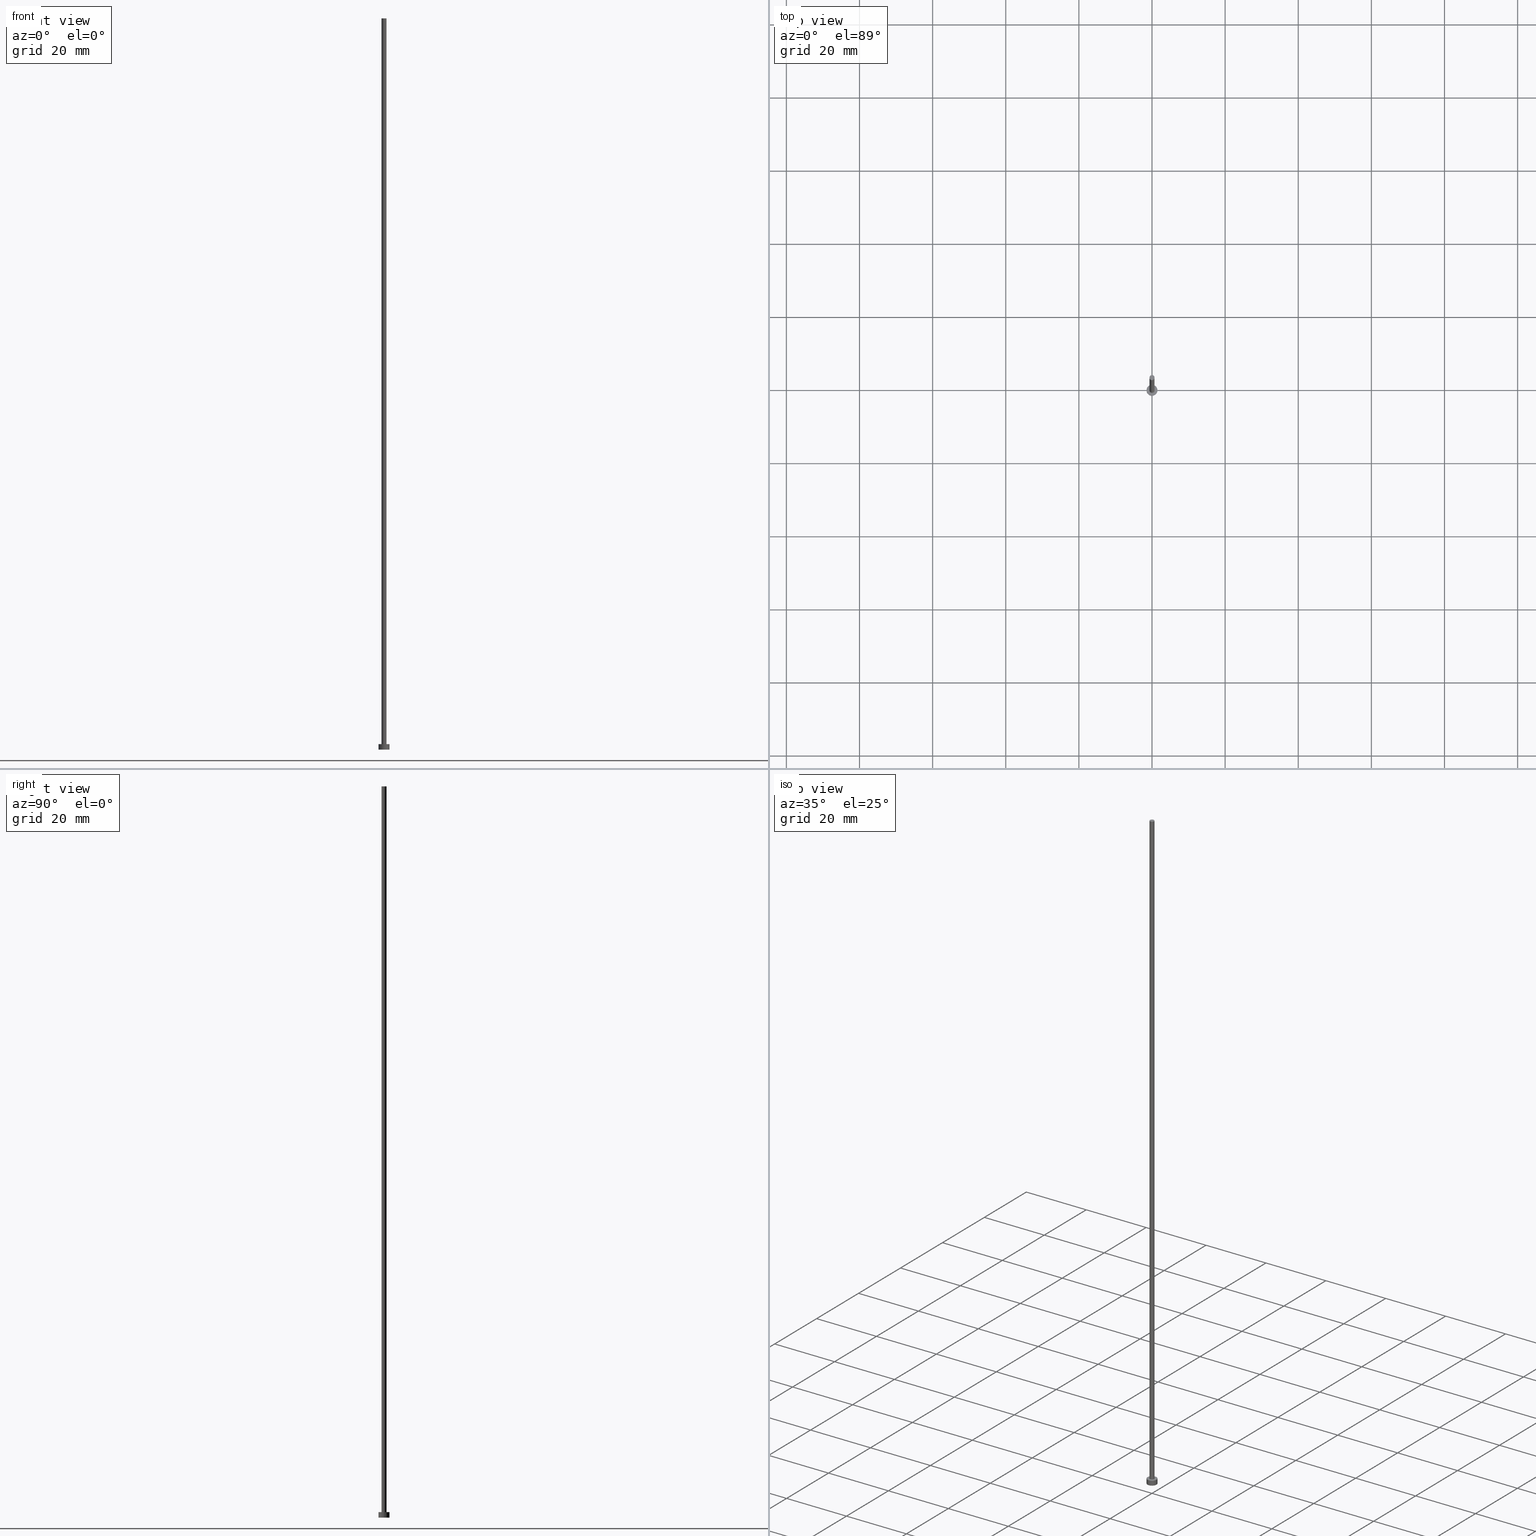
[diagram: canonical four-view strip — front | top / right | iso, engineering-drawing reading convention]
A machine part, canonical four-view strip (front | top / right | iso — engineering-drawing reading convention). The complete STEP part file that produces these views, byte-faithful:
ISO-10303-21;
HEADER;
FILE_DESCRIPTION (( 'STEP AP203' ),
    '1' );
FILE_NAME ('5b09.STEP',
    '2026-02-06T12:33:26',
    ( '' ),
    ( '' ),
    'SwSTEP 2.0',
    'SolidWorks 2019',
    '' );
FILE_SCHEMA (( 'CONFIG_CONTROL_DESIGN' ));
ENDSEC;

DATA;
#1 = VERTEX_POINT ( 'NONE', #242 ) ;
#2 = DIRECTION ( 'NONE',  ( 1.000000000000000000, 0.000000000000000000, 0.000000000000000000 ) ) ;
#3 = DIRECTION ( 'NONE',  ( 0.000000000000000000, 0.000000000000000000, 1.000000000000000000 ) ) ;
#4 = LOCAL_TIME ( 13, 33, 26.00000000000000000, #225 ) ;
#5 = DIRECTION ( 'NONE',  ( -0.000000000000000000, -0.000000000000000000, -1.000000000000000000 ) ) ;
#6 = DIRECTION ( 'NONE',  ( 0.000000000000000000, 0.000000000000000000, 1.000000000000000000 ) ) ;
#7 = PLANE ( 'NONE',  #246 ) ;
#8 = DATE_AND_TIME ( #12, #143 ) ;
#9 = DIRECTION ( 'NONE',  ( 0.000000000000000000, 0.000000000000000000, 1.000000000000000000 ) ) ;
#10 = ORIENTED_EDGE ( 'NONE', *, *, #177, .F. ) ;
#11 = PERSON_AND_ORGANIZATION_ROLE ( 'creator' ) ;
#12 = CALENDAR_DATE ( 2026, 6, 2 ) ;
#13 = DIRECTION ( 'NONE',  ( 0.000000000000000000, 0.000000000000000000, 1.000000000000000000 ) ) ;
#14 = CC_DESIGN_DATE_AND_TIME_ASSIGNMENT ( #149, #130, ( #100 ) ) ;
#15 = DIRECTION ( 'NONE',  ( 1.000000000000000000, 0.000000000000000000, 0.000000000000000000 ) ) ;
#16 = ORIENTED_EDGE ( 'NONE', *, *, #153, .F. ) ;
#17 = AXIS2_PLACEMENT_3D ( 'NONE', #202, #13, #236 ) ;
#18 = ORIENTED_EDGE ( 'NONE', *, *, #205, .T. ) ;
#19 = PRODUCT_DEFINITION ( 'NEZN�M�', '', #154, #181 ) ;
#20 = ORIENTED_EDGE ( 'NONE', *, *, #205, .F. ) ;
#21 = FACE_OUTER_BOUND ( 'NONE', #32, .T. ) ;
#22 = DIRECTION ( 'NONE',  ( -0.000000000000000000, -0.000000000000000000, -1.000000000000000000 ) ) ;
#23 = CC_DESIGN_SECURITY_CLASSIFICATION ( #100, ( #154 ) ) ;
#24 = UNCERTAINTY_MEASURE_WITH_UNIT (LENGTH_MEASURE( 1.000000000000000082E-05 ), #140, 'distance_accuracy_value', 'NONE');
#25 = SHAPE_DEFINITION_REPRESENTATION ( #165, #50 ) ;
#26 = FACE_OUTER_BOUND ( 'NONE', #233, .T. ) ;
#27 = PERSON_AND_ORGANIZATION_ROLE ( 'classification_officer' ) ;
#28 = COORDINATED_UNIVERSAL_TIME_OFFSET ( 1, 0, .AHEAD. ) ;
#29 = ADVANCED_FACE ( 'NONE', ( #173, #26 ), #7, .T. ) ;
#30 = CIRCLE ( 'NONE', #72, 0.6999999999999999556 ) ;
#31 = APPROVAL_ROLE ( '' ) ;
#32 = EDGE_LOOP ( 'NONE', ( #204, #94 ) ) ;
#33 = CC_DESIGN_APPROVAL ( #91, ( #19 ) ) ;
#34 = AXIS2_PLACEMENT_3D ( 'NONE', #179, #3, #238 ) ;
#35 = DIRECTION ( 'NONE',  ( 0.000000000000000000, 0.000000000000000000, 1.000000000000000000 ) ) ;
#36 = CARTESIAN_POINT ( 'NONE',  ( 1.500000000000000222, 1.836970198721030181E-16, 1.500000000000000000 ) ) ;
#37 = LINE ( 'NONE', #56, #136 ) ;
#38 = CIRCLE ( 'NONE', #73, 1.500000000000000222 ) ;
#39 = LINE ( 'NONE', #180, #210 ) ;
#40 = VERTEX_POINT ( 'NONE', #87 ) ;
#41 = DIRECTION ( 'NONE',  ( 1.000000000000000000, 0.000000000000000000, 0.000000000000000000 ) ) ;
#42 = APPROVAL ( #239, 'NEUR�EN�' ) ;
#43 = EDGE_CURVE ( 'NONE', #40, #156, #135, .T. ) ;
#44 = DATE_AND_TIME ( #103, #245 ) ;
#45 = AXIS2_PLACEMENT_3D ( 'NONE', #76, #198, #144 ) ;
#46 = ADVANCED_FACE ( 'NONE', ( #167 ), #199, .T. ) ;
#47 = PERSON_AND_ORGANIZATION_ROLE ( 'creator' ) ;
#48 = APPROVAL_DATE_TIME ( #128, #91 ) ;
#49 = ORIENTED_EDGE ( 'NONE', *, *, #168, .T. ) ;
#50 = ADVANCED_BREP_SHAPE_REPRESENTATION ( '5b09', ( #82, #120 ), #250 ) ;
#51 = AXIS2_PLACEMENT_3D ( 'NONE', #124, #6, #85 ) ;
#52 = CC_DESIGN_DATE_AND_TIME_ASSIGNMENT ( #44, #84, ( #19 ) ) ;
#53 = CC_DESIGN_APPROVAL ( #42, ( #154 ) ) ;
#54 = APPLICATION_CONTEXT ( 'configuration controlled 3d designs of mechanical parts and assemblies' ) ;
#55 = DIRECTION ( 'NONE',  ( -0.000000000000000000, -0.000000000000000000, -1.000000000000000000 ) ) ;
#56 = CARTESIAN_POINT ( 'NONE',  ( -1.500000000000000222, 0.000000000000000000, 1.500000000000000000 ) ) ;
#57 = EDGE_LOOP ( 'NONE', ( #70, #16, #193, #18 ) ) ;
#58 = LINE ( 'NONE', #36, #102 ) ;
#59 = DIRECTION ( 'NONE',  ( 0.000000000000000000, 0.000000000000000000, 1.000000000000000000 ) ) ;
#60 = EDGE_CURVE ( 'NONE', #1, #151, #79, .T. ) ;
#61 = COORDINATED_UNIVERSAL_TIME_OFFSET ( 1, 0, .AHEAD. ) ;
#62 = DIRECTION ( 'NONE',  ( -0.000000000000000000, -0.000000000000000000, -1.000000000000000000 ) ) ;
#63 = PERSON ( 'NEUR�EN�', 'NEUR�EN�', 'NEUR�EN�', ('NEUR�EN�'), ('NEUR�EN�'), ('NEUR�EN�') ) ;
#64 = APPROVAL_DATE_TIME ( #8, #42 ) ;
#65 = DIRECTION ( 'NONE',  ( -0.000000000000000000, -0.000000000000000000, -1.000000000000000000 ) ) ;
#66 = PRODUCT ( '5b09', '5b09', '', ( #86 ) ) ;
#67 = APPROVAL_ROLE ( '' ) ;
#68 = APPROVAL_ROLE ( '' ) ;
#69 = DIRECTION ( 'NONE',  ( 0.000000000000000000, 0.000000000000000000, 1.000000000000000000 ) ) ;
#70 = ORIENTED_EDGE ( 'NONE', *, *, #222, .F. ) ;
#71 = ADVANCED_FACE ( 'NONE', ( #105 ), #203, .T. ) ;
#72 = AXIS2_PLACEMENT_3D ( 'NONE', #161, #121, #232 ) ;
#73 = AXIS2_PLACEMENT_3D ( 'NONE', #196, #35, #255 ) ;
#74 = CARTESIAN_POINT ( 'NONE',  ( 0.000000000000000000, 0.000000000000000000, 0.000000000000000000 ) ) ;
#75 = ORIENTED_EDGE ( 'NONE', *, *, #93, .T. ) ;
#76 = CARTESIAN_POINT ( 'NONE',  ( 0.000000000000000000, 0.000000000000000000, 200.0000000000000000 ) ) ;
#77 = ORIENTED_EDGE ( 'NONE', *, *, #60, .F. ) ;
#78 = DIRECTION ( 'NONE',  ( -1.000000000000000000, 0.000000000000000000, 0.000000000000000000 ) ) ;
#79 = CIRCLE ( 'NONE', #34, 0.6999999999999999556 ) ;
#80 = ORIENTED_EDGE ( 'NONE', *, *, #153, .T. ) ;
#81 = CARTESIAN_POINT ( 'NONE',  ( 0.000000000000000000, 0.000000000000000000, 0.000000000000000000 ) ) ;
#82 = MANIFOLD_SOLID_BREP ( 'P�idat vysunut�m3', #114 ) ;
#83 = ORIENTED_EDGE ( 'NONE', *, *, #253, .F. ) ;
#84 = DATE_TIME_ROLE ( 'creation_date' ) ;
#85 = DIRECTION ( 'NONE',  ( 1.000000000000000000, 0.000000000000000000, 0.000000000000000000 ) ) ;
#86 = MECHANICAL_CONTEXT ( 'NONE', #54, 'mechanical' ) ;
#87 = CARTESIAN_POINT ( 'NONE',  ( -1.500000000000000222, 0.000000000000000000, 1.500000000000000000 ) ) ;
#88 = PERSON_AND_ORGANIZATION_ROLE ( 'design_supplier' ) ;
#89 = PERSON_AND_ORGANIZATION ( #63, #147 ) ;
#90 = ORIENTED_EDGE ( 'NONE', *, *, #222, .T. ) ;
#91 = APPROVAL ( #145, 'NEUR�EN�' ) ;
#92 = LOCAL_TIME ( 13, 33, 26.00000000000000000, #109 ) ;
#93 = EDGE_CURVE ( 'NONE', #156, #40, #38, .T. ) ;
#94 = ORIENTED_EDGE ( 'NONE', *, *, #112, .F. ) ;
#95 = APPLICATION_CONTEXT ( 'configuration controlled 3d designs of mechanical parts and assemblies' ) ;
#96 = CARTESIAN_POINT ( 'NONE',  ( 0.000000000000000000, 0.000000000000000000, 1.500000000000000000 ) ) ;
#97 = CYLINDRICAL_SURFACE ( 'NONE', #234, 1.500000000000000222 ) ;
#98 = FACE_OUTER_BOUND ( 'NONE', #178, .T. ) ;
#99 = DIRECTION ( 'NONE',  ( -1.000000000000000000, 0.000000000000000000, 0.000000000000000000 ) ) ;
#100 = SECURITY_CLASSIFICATION ( '', '', #201 ) ;
#101 = CC_DESIGN_PERSON_AND_ORGANIZATION_ASSIGNMENT ( #152, #237, ( #66 ) ) ;
#102 = VECTOR ( 'NONE', #5, 1000.000000000000000 ) ;
#103 = CALENDAR_DATE ( 2026, 6, 2 ) ;
#104 = COORDINATED_UNIVERSAL_TIME_OFFSET ( 1, 0, .AHEAD. ) ;
#105 = FACE_OUTER_BOUND ( 'NONE', #118, .T. ) ;
#106 = ORIENTED_EDGE ( 'NONE', *, *, #160, .T. ) ;
#107 = APPLICATION_PROTOCOL_DEFINITION ( 'international standard', 'config_control_design', 1994, #95 ) ;
#108 = ORIENTED_EDGE ( 'NONE', *, *, #168, .F. ) ;
#109 = COORDINATED_UNIVERSAL_TIME_OFFSET ( 1, 0, .AHEAD. ) ;
#110 = CIRCLE ( 'NONE', #117, 1.500000000000000222 ) ;
#111 = CC_DESIGN_PERSON_AND_ORGANIZATION_ASSIGNMENT ( #150, #27, ( #100 ) ) ;
#112 = EDGE_CURVE ( 'NONE', #172, #228, #218, .T. ) ;
#113 = FACE_OUTER_BOUND ( 'NONE', #188, .T. ) ;
#114 = CLOSED_SHELL ( 'NONE', ( #46, #230, #71, #29, #138, #213, #122 ) ) ;
#115 = CC_DESIGN_APPROVAL ( #184, ( #100 ) ) ;
#116 = ORIENTED_EDGE ( 'NONE', *, *, #60, .T. ) ;
#117 = AXIS2_PLACEMENT_3D ( 'NONE', #74, #59, #41 ) ;
#118 = EDGE_LOOP ( 'NONE', ( #108, #125, #155, #170 ) ) ;
#119 = CARTESIAN_POINT ( 'NONE',  ( 0.000000000000000000, 0.000000000000000000, 1.500000000000000000 ) ) ;
#120 = AXIS2_PLACEMENT_3D ( 'NONE', #164, #166, #169 ) ;
#121 = DIRECTION ( 'NONE',  ( 0.000000000000000000, 0.000000000000000000, 1.000000000000000000 ) ) ;
#122 = ADVANCED_FACE ( 'NONE', ( #113 ), #207, .T. ) ;
#123 =( NAMED_UNIT ( * ) SI_UNIT ( $, .STERADIAN. ) SOLID_ANGLE_UNIT ( ) );
#124 = CARTESIAN_POINT ( 'NONE',  ( 0.000000000000000000, 0.000000000000000000, 1.500000000000000000 ) ) ;
#125 = ORIENTED_EDGE ( 'NONE', *, *, #43, .F. ) ;
#126 = APPLICATION_PROTOCOL_DEFINITION ( 'international standard', 'config_control_design', 1994, #54 ) ;
#127 = DIRECTION ( 'NONE',  ( 0.000000000000000000, 0.000000000000000000, 1.000000000000000000 ) ) ;
#128 = DATE_AND_TIME ( #190, #4 ) ;
#129 = DIRECTION ( 'NONE',  ( -1.000000000000000000, 0.000000000000000000, 0.000000000000000000 ) ) ;
#130 = DATE_TIME_ROLE ( 'classification_date' ) ;
#131 = ORIENTED_EDGE ( 'NONE', *, *, #160, .F. ) ;
#132 = CALENDAR_DATE ( 2026, 6, 2 ) ;
#133 = APPROVAL_PERSON_ORGANIZATION ( #183, #42, #67 ) ;
#134 = EDGE_CURVE ( 'NONE', #228, #172, #110, .T. ) ;
#135 = CIRCLE ( 'NONE', #51, 1.500000000000000222 ) ;
#136 = VECTOR ( 'NONE', #175, 1000.000000000000000 ) ;
#137 = CC_DESIGN_PERSON_AND_ORGANIZATION_ASSIGNMENT ( #221, #47, ( #19 ) ) ;
#138 = ADVANCED_FACE ( 'NONE', ( #21 ), #162, .F. ) ;
#139 = DIRECTION ( 'NONE',  ( -0.000000000000000000, -0.000000000000000000, -1.000000000000000000 ) ) ;
#140 =( LENGTH_UNIT ( ) NAMED_UNIT ( * ) SI_UNIT ( .MILLI., .METRE. ) );
#141 = CIRCLE ( 'NONE', #211, 0.6999999999999999556 ) ;
#142 = DIRECTION ( 'NONE',  ( -1.000000000000000000, 0.000000000000000000, 0.000000000000000000 ) ) ;
#143 = LOCAL_TIME ( 13, 33, 26.00000000000000000, #61 ) ;
#144 = DIRECTION ( 'NONE',  ( 1.000000000000000000, 0.000000000000000000, 0.000000000000000000 ) ) ;
#145 = APPROVAL_STATUS ( 'not_yet_approved' ) ;
#146 = CARTESIAN_POINT ( 'NONE',  ( 0.000000000000000000, 0.000000000000000000, 1.500000000000000000 ) ) ;
#147 = ORGANIZATION ( 'NEUR�EN�', 'NEUR�EN�', '' ) ;
#148 = LOCAL_TIME ( 13, 33, 26.00000000000000000, #104 ) ;
#149 = DATE_AND_TIME ( #132, #148 ) ;
#150 = PERSON_AND_ORGANIZATION ( #63, #147 ) ;
#151 = VERTEX_POINT ( 'NONE', #159 ) ;
#152 = PERSON_AND_ORGANIZATION ( #63, #147 ) ;
#153 = EDGE_CURVE ( 'NONE', #151, #1, #248, .T. ) ;
#154 = PRODUCT_DEFINITION_FORMATION_WITH_SPECIFIED_SOURCE ( 'LIBOVOLN�', '', #66, .NOT_KNOWN. ) ;
#155 = ORIENTED_EDGE ( 'NONE', *, *, #177, .T. ) ;
#156 = VERTEX_POINT ( 'NONE', #220 ) ;
#157 = CARTESIAN_POINT ( 'NONE',  ( 0.6999999999999999556, 8.572527594031471957E-17, 200.0000000000000000 ) ) ;
#158 = AXIS2_PLACEMENT_3D ( 'NONE', #240, #65, #99 ) ;
#159 = CARTESIAN_POINT ( 'NONE',  ( -0.6999999999999999556, 0.000000000000000000, 200.0000000000000000 ) ) ;
#160 = EDGE_CURVE ( 'NONE', #187, #244, #141, .T. ) ;
#161 = CARTESIAN_POINT ( 'NONE',  ( 0.000000000000000000, 0.000000000000000000, 1.500000000000000000 ) ) ;
#162 = PLANE ( 'NONE',  #182 ) ;
#163 = LINE ( 'NONE', #157, #247 ) ;
#164 = CARTESIAN_POINT ( 'NONE',  ( 0.000000000000000000, 0.000000000000000000, 0.000000000000000000 ) ) ;
#165 = PRODUCT_DEFINITION_SHAPE ( 'NONE', 'NONE',  #19 ) ;
#166 = DIRECTION ( 'NONE',  ( 0.000000000000000000, 0.000000000000000000, 1.000000000000000000 ) ) ;
#167 = FACE_OUTER_BOUND ( 'NONE', #208, .T. ) ;
#168 = EDGE_CURVE ( 'NONE', #156, #172, #58, .T. ) ;
#169 = DIRECTION ( 'NONE',  ( 1.000000000000000000, 0.000000000000000000, 0.000000000000000000 ) ) ;
#170 = ORIENTED_EDGE ( 'NONE', *, *, #134, .T. ) ;
#171 = DATE_AND_TIME ( #206, #92 ) ;
#172 = VERTEX_POINT ( 'NONE', #200 ) ;
#173 = FACE_BOUND ( 'NONE', #212, .T. ) ;
#174 = AXIS2_PLACEMENT_3D ( 'NONE', #197, #22, #142 ) ;
#175 = DIRECTION ( 'NONE',  ( -0.000000000000000000, -0.000000000000000000, -1.000000000000000000 ) ) ;
#176 = CARTESIAN_POINT ( 'NONE',  ( 0.6999999999999999556, 8.572527594031471957E-17, 1.500000000000000000 ) ) ;
#177 = EDGE_CURVE ( 'NONE', #40, #228, #37, .T. ) ;
#178 = EDGE_LOOP ( 'NONE', ( #214, #49, #191, #10 ) ) ;
#179 = CARTESIAN_POINT ( 'NONE',  ( 0.000000000000000000, 0.000000000000000000, 200.0000000000000000 ) ) ;
#180 = CARTESIAN_POINT ( 'NONE',  ( -0.6999999999999999556, 0.000000000000000000, 200.0000000000000000 ) ) ;
#181 = DESIGN_CONTEXT ( 'detailed design', #95, 'design' ) ;
#182 = AXIS2_PLACEMENT_3D ( 'NONE', #81, #235, #216 ) ;
#183 = PERSON_AND_ORGANIZATION ( #63, #147 ) ;
#184 = APPROVAL ( #186, 'NEUR�EN�' ) ;
#185 = DIRECTION ( 'NONE',  ( 1.000000000000000000, 0.000000000000000000, -0.000000000000000000 ) ) ;
#186 = APPROVAL_STATUS ( 'not_yet_approved' ) ;
#187 = VERTEX_POINT ( 'NONE', #176 ) ;
#188 = EDGE_LOOP ( 'NONE', ( #80, #116 ) ) ;
#189 = AXIS2_PLACEMENT_3D ( 'NONE', #146, #62, #129 ) ;
#190 = CALENDAR_DATE ( 2026, 6, 2 ) ;
#191 = ORIENTED_EDGE ( 'NONE', *, *, #112, .T. ) ;
#192 = ORIENTED_EDGE ( 'NONE', *, *, #43, .T. ) ;
#193 = ORIENTED_EDGE ( 'NONE', *, *, #253, .T. ) ;
#194 = PRODUCT_RELATED_PRODUCT_CATEGORY ( 'detail', '', ( #66 ) ) ;
#195 = CYLINDRICAL_SURFACE ( 'NONE', #174, 0.6999999999999999556 ) ;
#196 = CARTESIAN_POINT ( 'NONE',  ( 0.000000000000000000, 0.000000000000000000, 1.500000000000000000 ) ) ;
#197 = CARTESIAN_POINT ( 'NONE',  ( 0.000000000000000000, 0.000000000000000000, 200.0000000000000000 ) ) ;
#198 = DIRECTION ( 'NONE',  ( 0.000000000000000000, 0.000000000000000000, 1.000000000000000000 ) ) ;
#199 = CYLINDRICAL_SURFACE ( 'NONE', #158, 0.6999999999999999556 ) ;
#200 = CARTESIAN_POINT ( 'NONE',  ( 1.500000000000000222, 1.836970198721030181E-16, 0.000000000000000000 ) ) ;
#201 = SECURITY_CLASSIFICATION_LEVEL ( 'unclassified' ) ;
#202 = CARTESIAN_POINT ( 'NONE',  ( 0.000000000000000000, 0.000000000000000000, 200.0000000000000000 ) ) ;
#203 = CYLINDRICAL_SURFACE ( 'NONE', #189, 1.500000000000000222 ) ;
#204 = ORIENTED_EDGE ( 'NONE', *, *, #134, .F. ) ;
#205 = EDGE_CURVE ( 'NONE', #244, #187, #30, .T. ) ;
#206 = CALENDAR_DATE ( 2026, 6, 2 ) ;
#207 = PLANE ( 'NONE',  #17 ) ;
#208 = EDGE_LOOP ( 'NONE', ( #77, #90, #106, #83 ) ) ;
#209 = PERSON_AND_ORGANIZATION ( #63, #147 ) ;
#210 = VECTOR ( 'NONE', #215, 1000.000000000000000 ) ;
#211 = AXIS2_PLACEMENT_3D ( 'NONE', #96, #127, #2 ) ;
#212 = EDGE_LOOP ( 'NONE', ( #20, #131 ) ) ;
#213 = ADVANCED_FACE ( 'NONE', ( #249 ), #195, .T. ) ;
#214 = ORIENTED_EDGE ( 'NONE', *, *, #93, .F. ) ;
#215 = DIRECTION ( 'NONE',  ( -0.000000000000000000, -0.000000000000000000, -1.000000000000000000 ) ) ;
#216 = DIRECTION ( 'NONE',  ( 1.000000000000000000, 0.000000000000000000, -0.000000000000000000 ) ) ;
#217 = CARTESIAN_POINT ( 'NONE',  ( 0.000000000000000000, 0.000000000000000000, 0.000000000000000000 ) ) ;
#218 = CIRCLE ( 'NONE', #227, 1.500000000000000222 ) ;
#219 = APPROVAL_PERSON_ORGANIZATION ( #209, #184, #31 ) ;
#220 = CARTESIAN_POINT ( 'NONE',  ( 1.500000000000000222, 1.836970198721030181E-16, 1.500000000000000000 ) ) ;
#221 = PERSON_AND_ORGANIZATION ( #63, #147 ) ;
#222 = EDGE_CURVE ( 'NONE', #1, #187, #163, .T. ) ;
#223 = CARTESIAN_POINT ( 'NONE',  ( 0.000000000000000000, 0.000000000000000000, 1.500000000000000000 ) ) ;
#224 = PERSON_AND_ORGANIZATION ( #63, #147 ) ;
#225 = COORDINATED_UNIVERSAL_TIME_OFFSET ( 1, 0, .AHEAD. ) ;
#226 = APPROVAL_PERSON_ORGANIZATION ( #89, #91, #68 ) ;
#227 = AXIS2_PLACEMENT_3D ( 'NONE', #217, #69, #15 ) ;
#228 = VERTEX_POINT ( 'NONE', #231 ) ;
#229 = CC_DESIGN_PERSON_AND_ORGANIZATION_ASSIGNMENT ( #241, #11, ( #154 ) ) ;
#230 = ADVANCED_FACE ( 'NONE', ( #98 ), #97, .T. ) ;
#231 = CARTESIAN_POINT ( 'NONE',  ( -1.500000000000000222, 0.000000000000000000, 0.000000000000000000 ) ) ;
#232 = DIRECTION ( 'NONE',  ( 1.000000000000000000, 0.000000000000000000, 0.000000000000000000 ) ) ;
#233 = EDGE_LOOP ( 'NONE', ( #192, #75 ) ) ;
#234 = AXIS2_PLACEMENT_3D ( 'NONE', #119, #55, #78 ) ;
#235 = DIRECTION ( 'NONE',  ( 0.000000000000000000, 0.000000000000000000, 1.000000000000000000 ) ) ;
#236 = DIRECTION ( 'NONE',  ( 1.000000000000000000, 0.000000000000000000, -0.000000000000000000 ) ) ;
#237 = PERSON_AND_ORGANIZATION_ROLE ( 'design_owner' ) ;
#238 = DIRECTION ( 'NONE',  ( 1.000000000000000000, 0.000000000000000000, 0.000000000000000000 ) ) ;
#239 = APPROVAL_STATUS ( 'not_yet_approved' ) ;
#240 = CARTESIAN_POINT ( 'NONE',  ( 0.000000000000000000, 0.000000000000000000, 200.0000000000000000 ) ) ;
#241 = PERSON_AND_ORGANIZATION ( #63, #147 ) ;
#242 = CARTESIAN_POINT ( 'NONE',  ( 0.6999999999999999556, 8.572527594031471957E-17, 200.0000000000000000 ) ) ;
#243 = APPROVAL_DATE_TIME ( #171, #184 ) ;
#244 = VERTEX_POINT ( 'NONE', #252 ) ;
#245 = LOCAL_TIME ( 13, 33, 26.00000000000000000, #28 ) ;
#246 = AXIS2_PLACEMENT_3D ( 'NONE', #223, #9, #185 ) ;
#247 = VECTOR ( 'NONE', #139, 1000.000000000000000 ) ;
#248 = CIRCLE ( 'NONE', #45, 0.6999999999999999556 ) ;
#249 = FACE_OUTER_BOUND ( 'NONE', #57, .T. ) ;
#250 =( GEOMETRIC_REPRESENTATION_CONTEXT ( 3 ) GLOBAL_UNCERTAINTY_ASSIGNED_CONTEXT ( ( #24 ) ) GLOBAL_UNIT_ASSIGNED_CONTEXT ( ( #140, #254, #123 ) ) REPRESENTATION_CONTEXT ( 'NONE', 'WORKASPACE' ) );
#251 = CC_DESIGN_PERSON_AND_ORGANIZATION_ASSIGNMENT ( #224, #88, ( #154 ) ) ;
#252 = CARTESIAN_POINT ( 'NONE',  ( -0.6999999999999999556, 0.000000000000000000, 1.500000000000000000 ) ) ;
#253 = EDGE_CURVE ( 'NONE', #151, #244, #39, .T. ) ;
#254 =( NAMED_UNIT ( * ) PLANE_ANGLE_UNIT ( ) SI_UNIT ( $, .RADIAN. ) );
#255 = DIRECTION ( 'NONE',  ( 1.000000000000000000, 0.000000000000000000, 0.000000000000000000 ) ) ;
ENDSEC;
END-ISO-10303-21;
